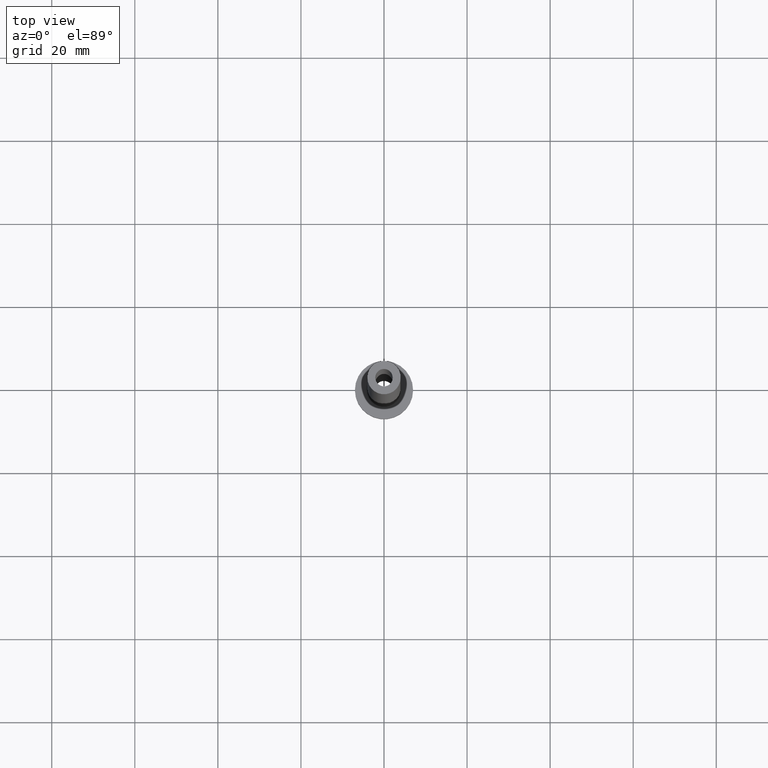
[diagram: clean part render]
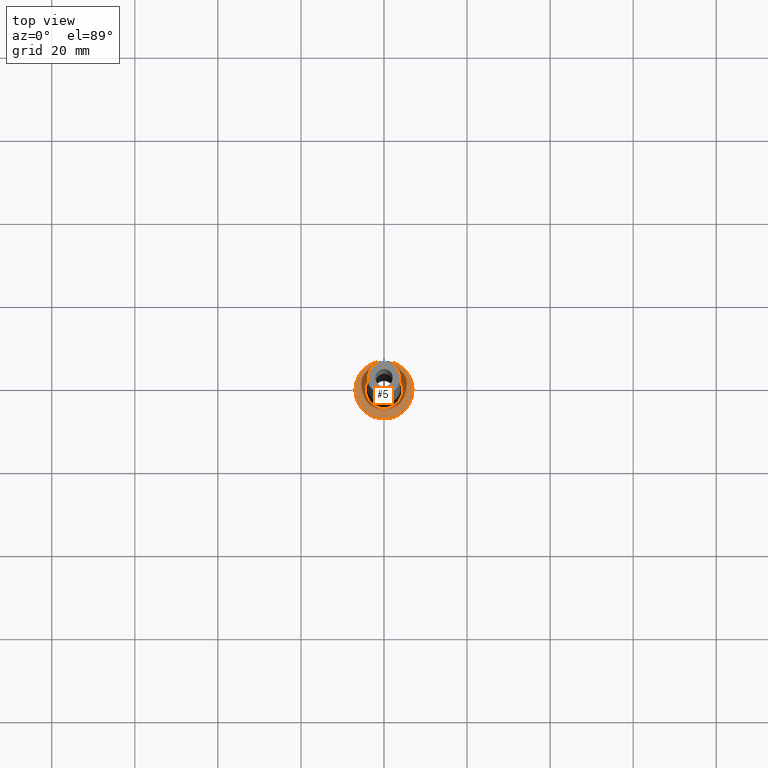
[diagram: same view with one face highlighted and labeled with its STEP entity id]
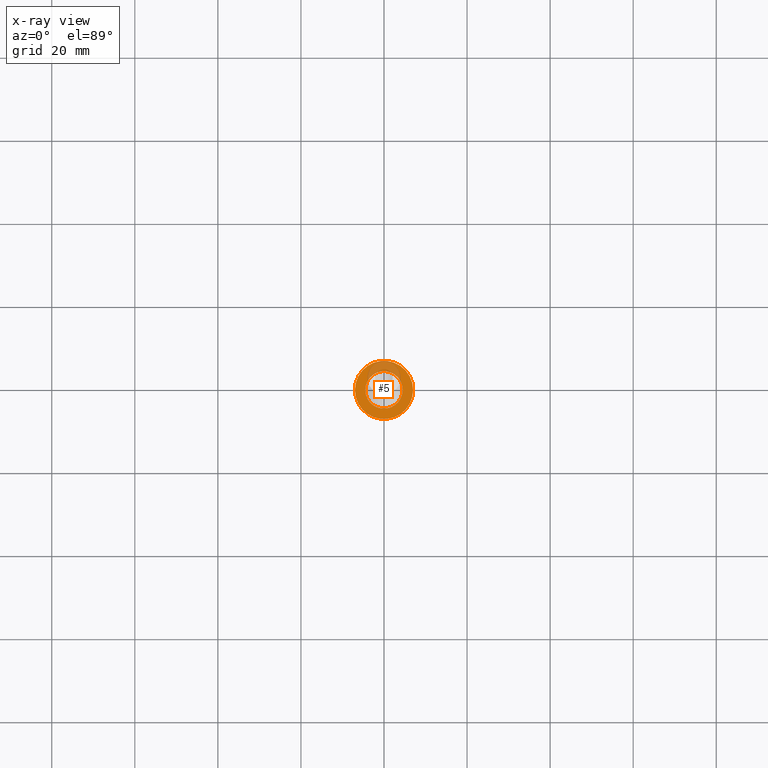
[diagram: x-ray of the same camera — body ghosted, the highlighted face saturated]
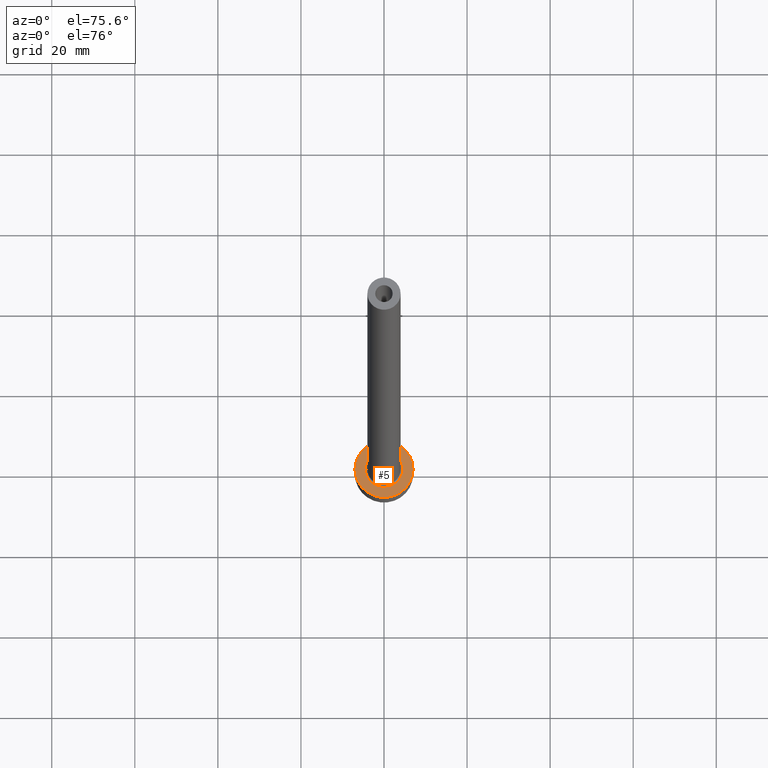
[diagram: same view with one face highlighted and labeled with its STEP entity id]
A machine part, top view. The second image highlights one B-rep face of the part: STEP entity #5.
The next image is the same camera in x-ray: the body ghosted, the highlighted face saturated — about 20% of this face is hidden behind the body in this view.
A second angle (auxiliary view) of the same face is appended — the face is thin or edge-on in the first view.
In plain terms, the highlighted planar face has unit normal (0, 0, 1).
Its self-contained STEP definition (entity closure, byte-faithful):
#5 = ADVANCED_FACE ( 'NONE', ( #103, #336 ), #140, .T. ) ;
#17 = ORIENTED_EDGE ( 'NONE', *, *, #380, .T. ) ;
#38 = EDGE_LOOP ( 'NONE', ( #154, #186 ) ) ;
#40 = AXIS2_PLACEMENT_3D ( 'NONE', #208, #353, #460 ) ;
#46 = CIRCLE ( 'NONE', #343, 4.500000000000000888 ) ;
#58 = AXIS2_PLACEMENT_3D ( 'NONE', #283, #239, #187 ) ;
#83 = CARTESIAN_POINT ( 'NONE',  ( 4.500000000000000888, 0.000000000000000000, 5.000000000000002665 ) ) ;
#89 = CARTESIAN_POINT ( 'NONE',  ( 0.000000000000000000, 0.000000000000000000, 5.000000000000000000 ) ) ;
#103 = FACE_BOUND ( 'NONE', #263, .T. ) ;
#119 = DIRECTION ( 'NONE',  ( 1.000000000000000000, 0.000000000000000000, 0.000000000000000000 ) ) ;
#140 = PLANE ( 'NONE',  #351 ) ;
#141 = EDGE_CURVE ( 'NONE', #213, #167, #317, .T. ) ;
#153 = CARTESIAN_POINT ( 'NONE',  ( -4.500000000000000888, 5.510910596163088569E-16, 5.000000000000002665 ) ) ;
#154 = ORIENTED_EDGE ( 'NONE', *, *, #249, .T. ) ;
#158 = DIRECTION ( 'NONE',  ( 0.000000000000000000, 0.000000000000000000, 1.000000000000000000 ) ) ;
#167 = VERTEX_POINT ( 'NONE', #200 ) ;
#186 = ORIENTED_EDGE ( 'NONE', *, *, #141, .T. ) ;
#187 = DIRECTION ( 'NONE',  ( 1.000000000000000000, 0.000000000000000000, 0.000000000000000000 ) ) ;
#200 = CARTESIAN_POINT ( 'NONE',  ( -7.000000000000000000, 0.000000000000000000, 5.000000000000000000 ) ) ;
#202 = VERTEX_POINT ( 'NONE', #83 ) ;
#208 = CARTESIAN_POINT ( 'NONE',  ( 0.000000000000000000, 0.000000000000000000, 5.000000000000000000 ) ) ;
#212 = CARTESIAN_POINT ( 'NONE',  ( 0.000000000000000000, 0.000000000000000000, 5.000000000000000000 ) ) ;
#213 = VERTEX_POINT ( 'NONE', #379 ) ;
#215 = DIRECTION ( 'NONE',  ( 1.000000000000000000, 0.000000000000000000, 0.000000000000000000 ) ) ;
#220 = VERTEX_POINT ( 'NONE', #153 ) ;
#239 = DIRECTION ( 'NONE',  ( 0.000000000000000000, 0.000000000000000000, 1.000000000000000000 ) ) ;
#249 = EDGE_CURVE ( 'NONE', #167, #213, #447, .T. ) ;
#263 = EDGE_LOOP ( 'NONE', ( #429, #17 ) ) ;
#265 = DIRECTION ( 'NONE',  ( 0.000000000000000000, 0.000000000000000000, 1.000000000000000000 ) ) ;
#283 = CARTESIAN_POINT ( 'NONE',  ( 0.000000000000000000, 0.000000000000000000, 5.000000000000000000 ) ) ;
#295 = AXIS2_PLACEMENT_3D ( 'NONE', #414, #158, #119 ) ;
#308 = DIRECTION ( 'NONE',  ( 1.000000000000000000, 0.000000000000000000, -0.000000000000000000 ) ) ;
#317 = CIRCLE ( 'NONE', #295, 7.000000000000000000 ) ;
#336 = FACE_OUTER_BOUND ( 'NONE', #38, .T. ) ;
#343 = AXIS2_PLACEMENT_3D ( 'NONE', #89, #390, #215 ) ;
#344 = EDGE_CURVE ( 'NONE', #202, #220, #46, .T. ) ;
#351 = AXIS2_PLACEMENT_3D ( 'NONE', #212, #265, #308 ) ;
#353 = DIRECTION ( 'NONE',  ( -0.000000000000000000, -0.000000000000000000, -1.000000000000000000 ) ) ;
#379 = CARTESIAN_POINT ( 'NONE',  ( 7.000000000000000000, 8.572527594031473190E-16, 5.000000000000000000 ) ) ;
#380 = EDGE_CURVE ( 'NONE', #220, #202, #425, .T. ) ;
#390 = DIRECTION ( 'NONE',  ( -0.000000000000000000, -0.000000000000000000, -1.000000000000000000 ) ) ;
#414 = CARTESIAN_POINT ( 'NONE',  ( 0.000000000000000000, 0.000000000000000000, 5.000000000000000000 ) ) ;
#425 = CIRCLE ( 'NONE', #40, 4.500000000000000888 ) ;
#429 = ORIENTED_EDGE ( 'NONE', *, *, #344, .T. ) ;
#447 = CIRCLE ( 'NONE', #58, 7.000000000000000000 ) ;
#460 = DIRECTION ( 'NONE',  ( 1.000000000000000000, 0.000000000000000000, 0.000000000000000000 ) ) ;